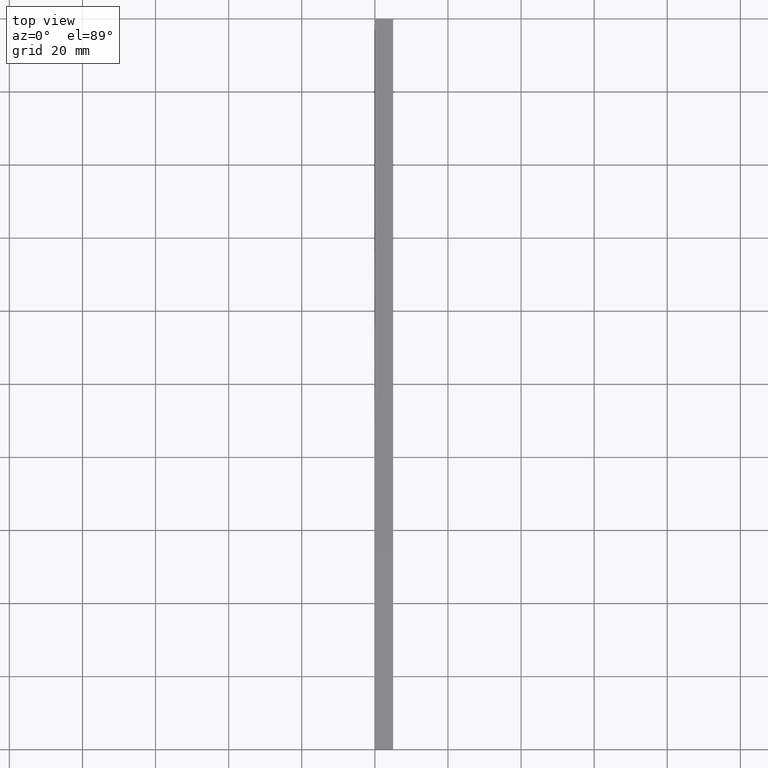
[diagram: clean part render]
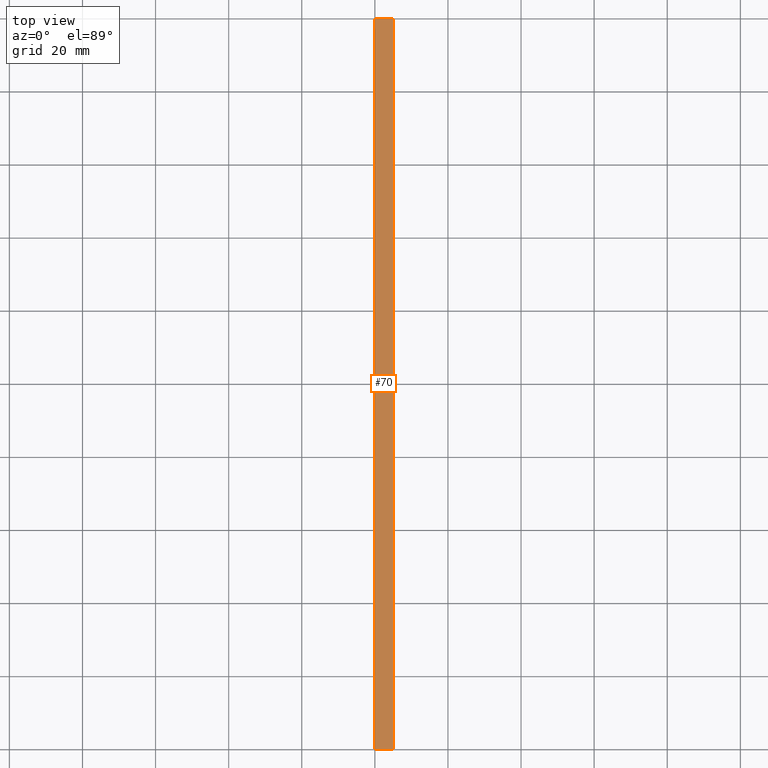
[diagram: same view with one face highlighted and labeled with its STEP entity id]
A machine part, top view. The second image highlights one B-rep face of the part: STEP entity #70.
In plain terms, the highlighted planar face has unit normal (0, 0, -1).
Its self-contained STEP definition (entity closure, byte-faithful):
#5 = DIRECTION ( 'NONE',  ( -1.000000000000000000, 0.0000000000000000000, 0.0000000000000000000 ) ) ;
#7 = LINE ( 'NONE', #215, #227 ) ;
#16 = EDGE_CURVE ( 'NONE', #121, #159, #7, .T. ) ;
#26 = EDGE_CURVE ( 'NONE', #121, #142, #64, .T. ) ;
#33 = FACE_OUTER_BOUND ( 'NONE', #194, .T. ) ;
#34 = DIRECTION ( 'NONE',  ( 0.0000000000000000000, -1.000000000000000000, 0.0000000000000000000 ) ) ;
#37 = DIRECTION ( 'NONE',  ( 1.000000000000000000, 0.0000000000000000000, 0.0000000000000000000 ) ) ;
#41 = EDGE_CURVE ( 'NONE', #142, #186, #173, .T. ) ;
#56 = EDGE_CURVE ( 'NONE', #159, #186, #84, .T. ) ;
#63 = CARTESIAN_POINT ( 'NONE',  ( 5.000000000000000000, 1000.000000000000000, 5.000000000000000000 ) ) ;
#64 = LINE ( 'NONE', #126, #182 ) ;
#70 = ADVANCED_FACE ( 'NONE', ( #33 ), #85, .F. ) ;
#71 = VECTOR ( 'NONE', #76, 1000.000000000000000 ) ;
#74 = CARTESIAN_POINT ( 'NONE',  ( 5.000000000000000000, 200.0000000000000000, 5.000000000000000000 ) ) ;
#76 = DIRECTION ( 'NONE',  ( 0.0000000000000000000, -1.000000000000000000, 0.0000000000000000000 ) ) ;
#84 = LINE ( 'NONE', #63, #71 ) ;
#85 = PLANE ( 'NONE',  #94 ) ;
#90 = ORIENTED_EDGE ( 'NONE', *, *, #26, .T. ) ;
#91 = VECTOR ( 'NONE', #115, 1000.000000000000000 ) ;
#94 = AXIS2_PLACEMENT_3D ( 'NONE', #219, #200, #5 ) ;
#115 = DIRECTION ( 'NONE',  ( 1.000000000000000000, 0.0000000000000000000, 0.0000000000000000000 ) ) ;
#119 = CARTESIAN_POINT ( 'NONE',  ( 0.0000000000000000000, 0.0000000000000000000, 5.000000000000000000 ) ) ;
#121 = VERTEX_POINT ( 'NONE', #171 ) ;
#126 = CARTESIAN_POINT ( 'NONE',  ( 0.0000000000000000000, 1000.000000000000000, 5.000000000000000000 ) ) ;
#141 = CARTESIAN_POINT ( 'NONE',  ( 0.0000000000000000000, 0.0000000000000000000, 5.000000000000000000 ) ) ;
#142 = VERTEX_POINT ( 'NONE', #141 ) ;
#159 = VERTEX_POINT ( 'NONE', #74 ) ;
#164 = CARTESIAN_POINT ( 'NONE',  ( 5.000000000000000000, 0.0000000000000000000, 5.000000000000000000 ) ) ;
#169 = ORIENTED_EDGE ( 'NONE', *, *, #56, .F. ) ;
#171 = CARTESIAN_POINT ( 'NONE',  ( 0.0000000000000000000, 200.0000000000000000, 5.000000000000000000 ) ) ;
#173 = LINE ( 'NONE', #119, #91 ) ;
#180 = ORIENTED_EDGE ( 'NONE', *, *, #41, .T. ) ;
#182 = VECTOR ( 'NONE', #34, 1000.000000000000000 ) ;
#186 = VERTEX_POINT ( 'NONE', #164 ) ;
#194 = EDGE_LOOP ( 'NONE', ( #180, #169, #197, #90 ) ) ;
#197 = ORIENTED_EDGE ( 'NONE', *, *, #16, .F. ) ;
#200 = DIRECTION ( 'NONE',  ( 0.0000000000000000000, 0.0000000000000000000, -1.000000000000000000 ) ) ;
#215 = CARTESIAN_POINT ( 'NONE',  ( 0.0000000000000000000, 200.0000000000000000, 5.000000000000000000 ) ) ;
#219 = CARTESIAN_POINT ( 'NONE',  ( 0.0000000000000000000, 1000.000000000000000, 5.000000000000000000 ) ) ;
#227 = VECTOR ( 'NONE', #37, 1000.000000000000000 ) ;